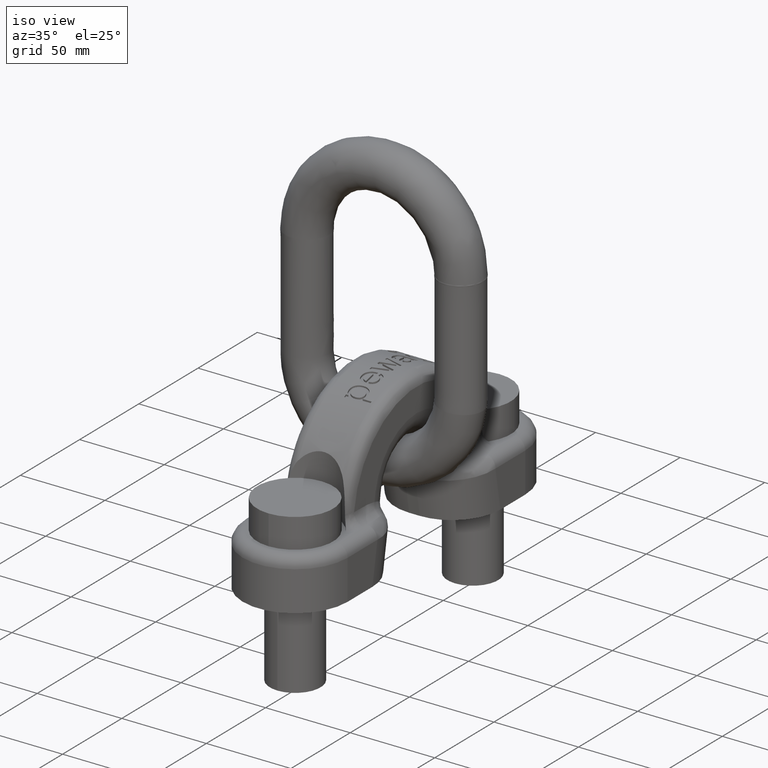
[diagram: clean part render]
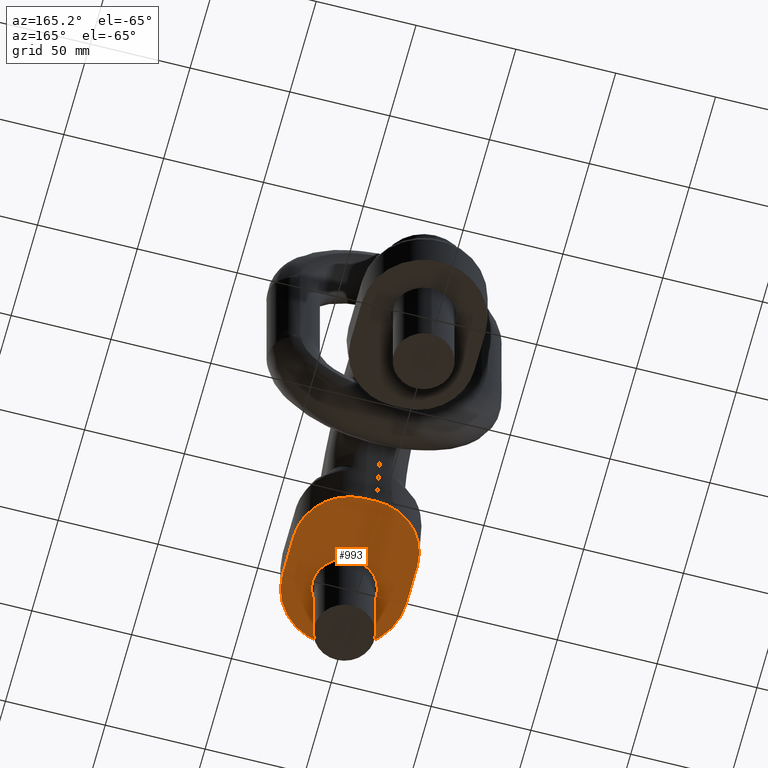
[diagram: tour spotlight — one face highlighted and labeled with its STEP entity id]
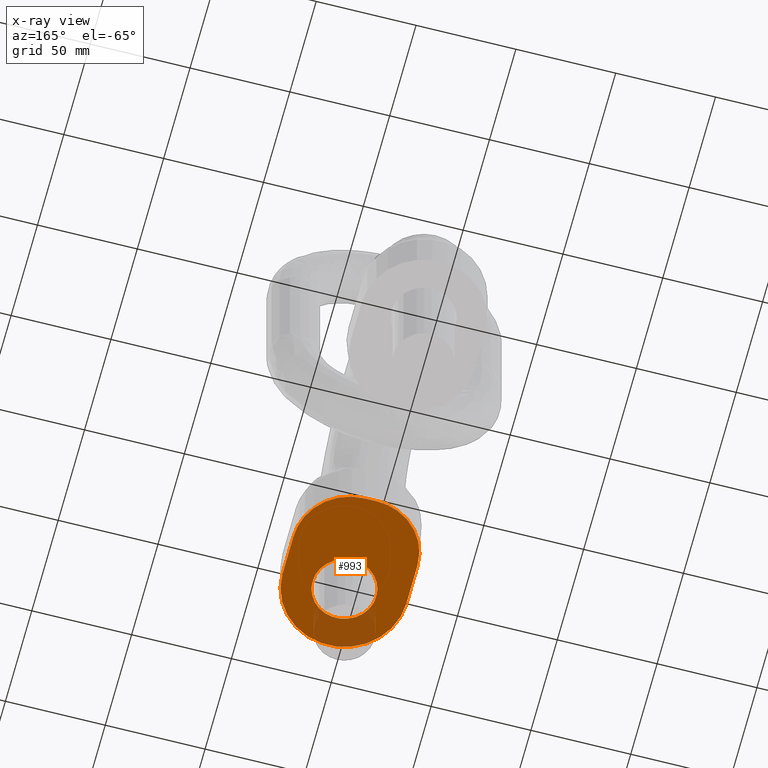
[diagram: x-ray of the same camera — body ghosted, this tour face saturated]
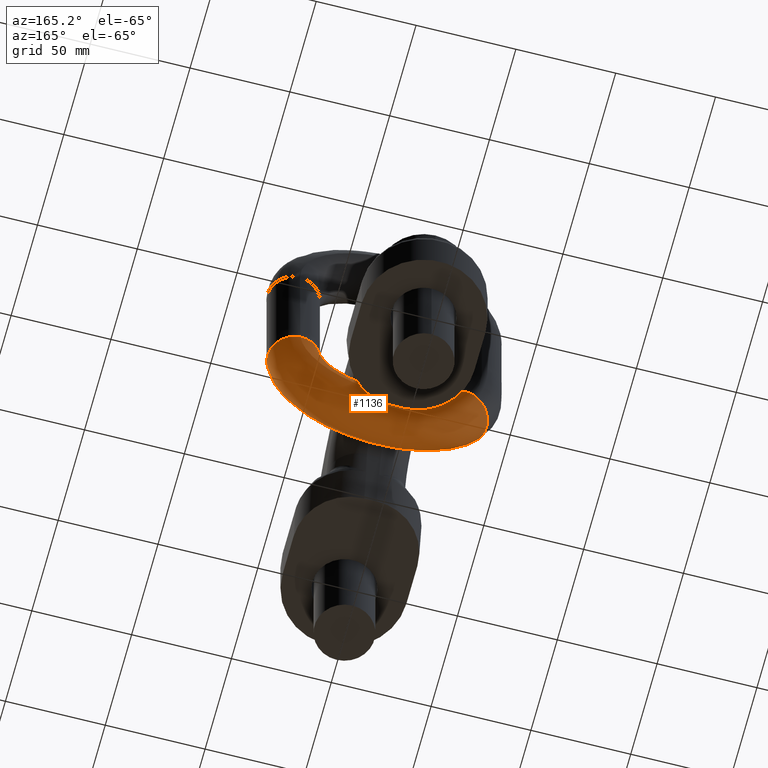
[diagram: tour spotlight — one face highlighted and labeled with its STEP entity id]
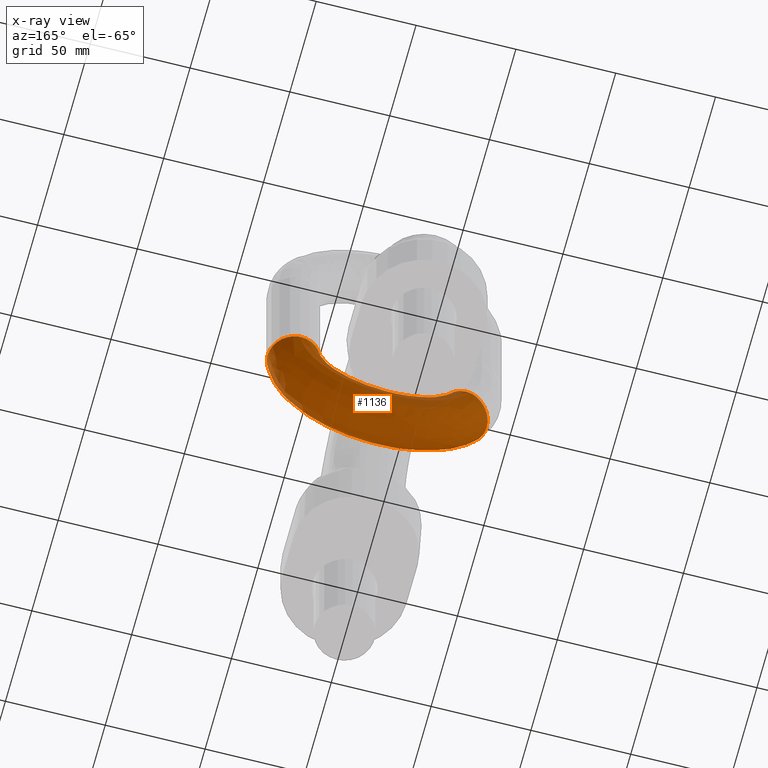
[diagram: x-ray of the same camera — body ghosted, this tour face saturated]
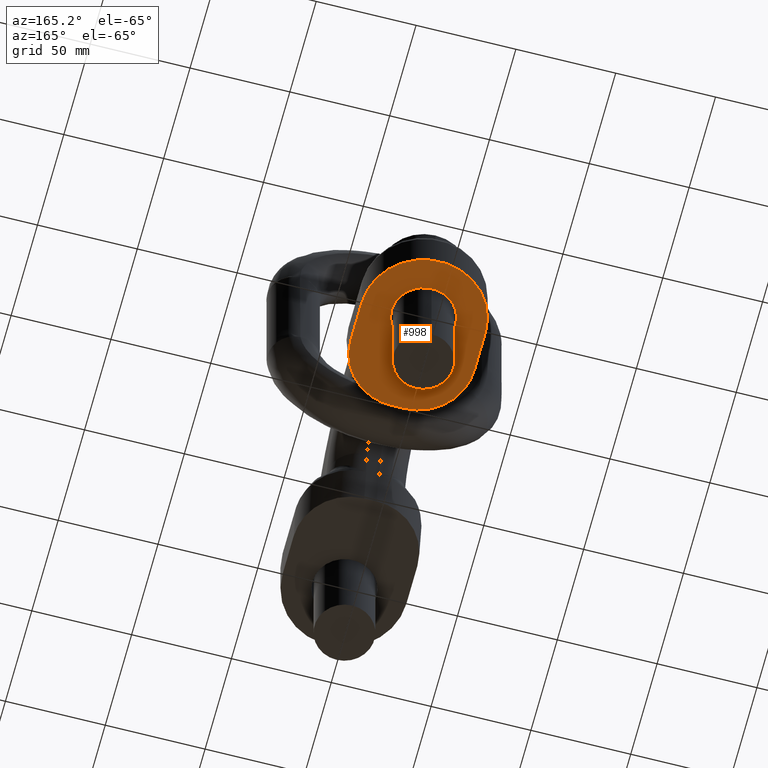
[diagram: tour spotlight — one face highlighted and labeled with its STEP entity id]
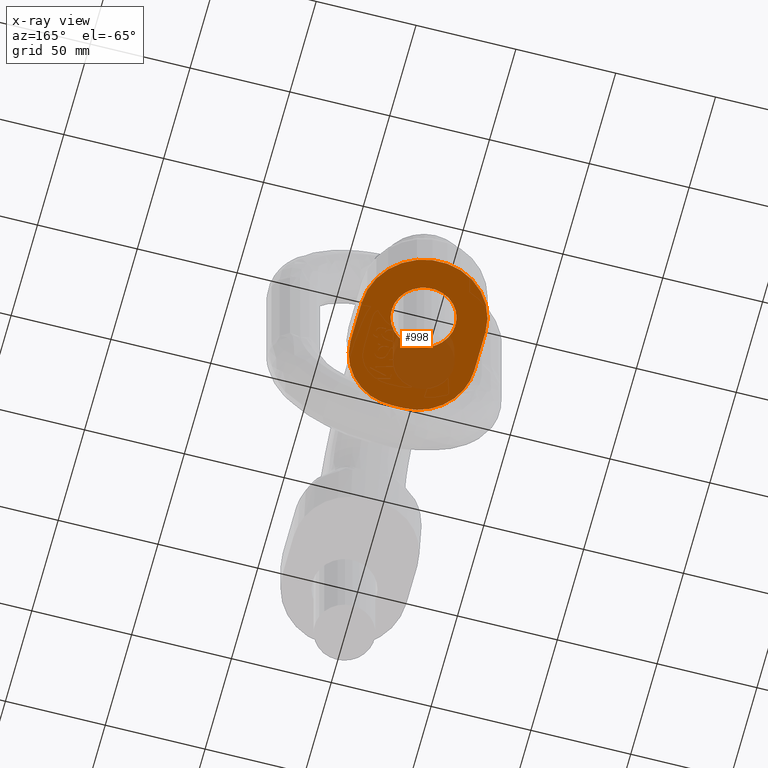
[diagram: x-ray of the same camera — body ghosted, this tour face saturated]
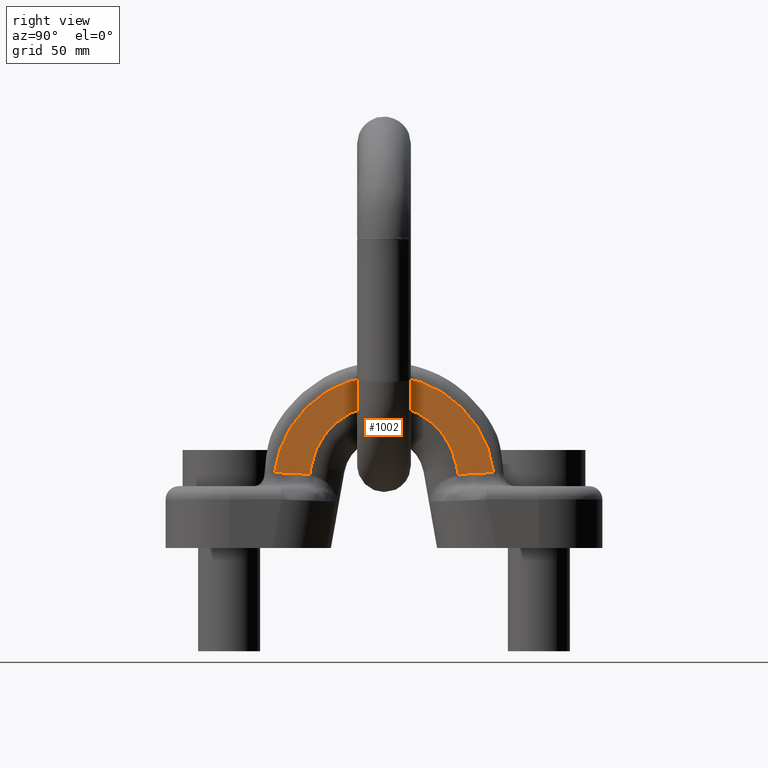
[diagram: tour spotlight — one face highlighted and labeled with its STEP entity id]
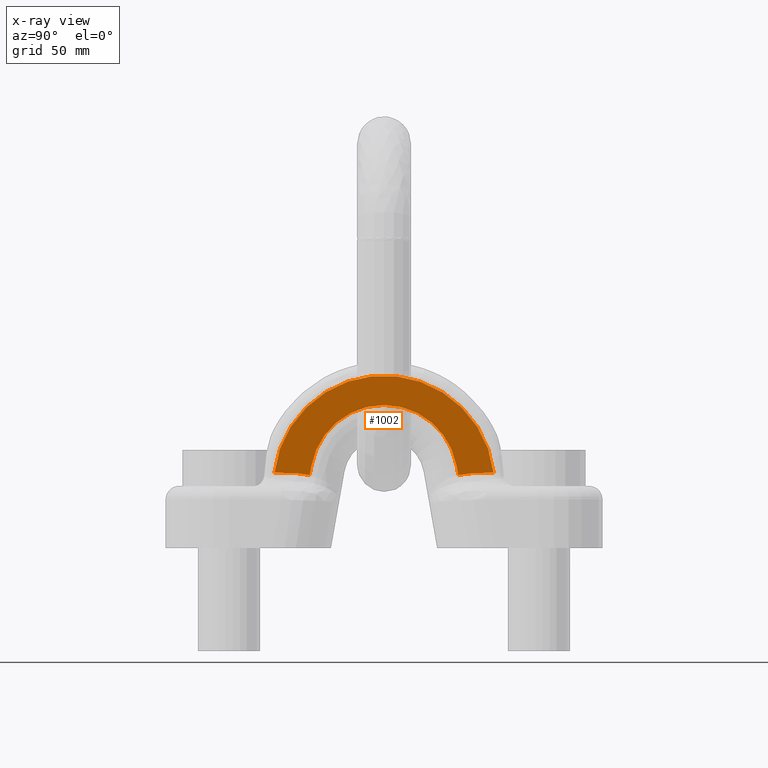
[diagram: x-ray of the same camera — body ghosted, this tour face saturated]
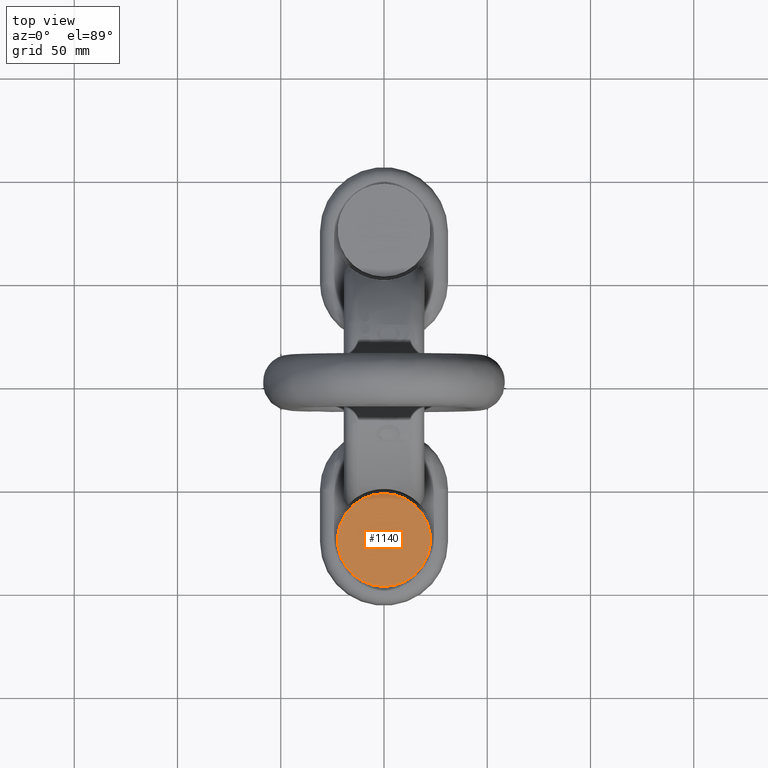
[diagram: tour spotlight — one face highlighted and labeled with its STEP entity id]
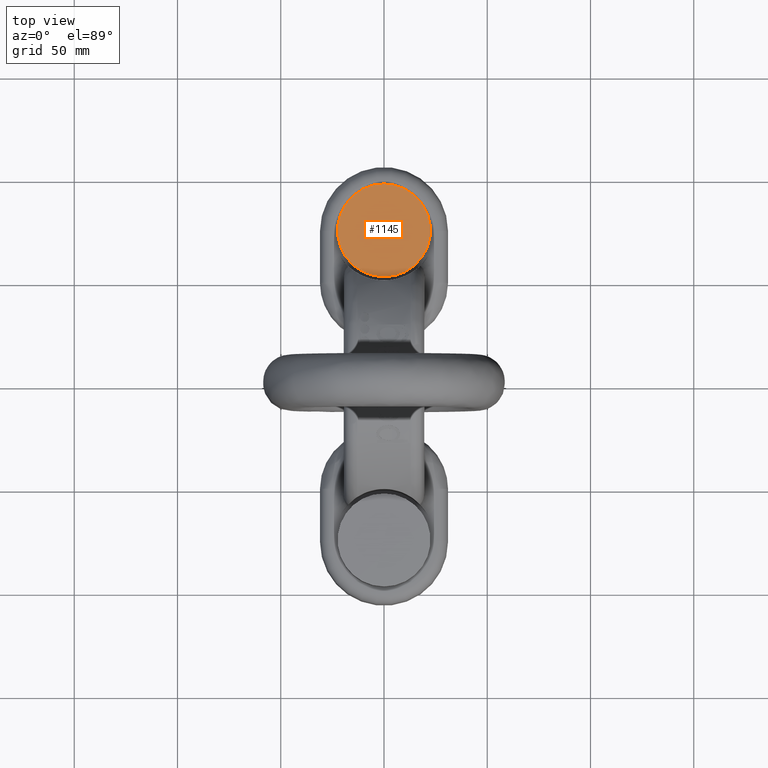
[diagram: tour spotlight — one face highlighted and labeled with its STEP entity id]
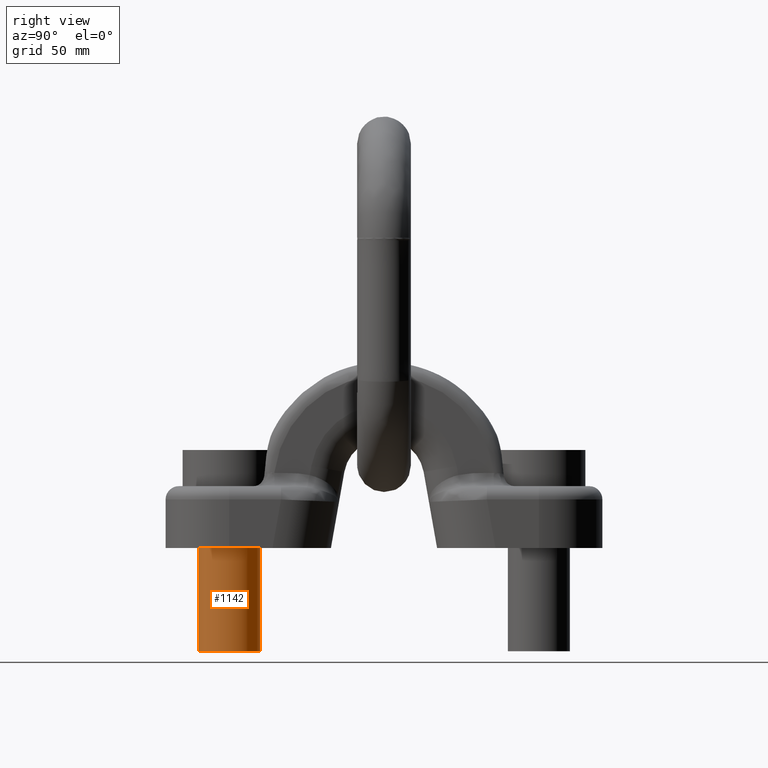
[diagram: tour spotlight — one face highlighted and labeled with its STEP entity id]
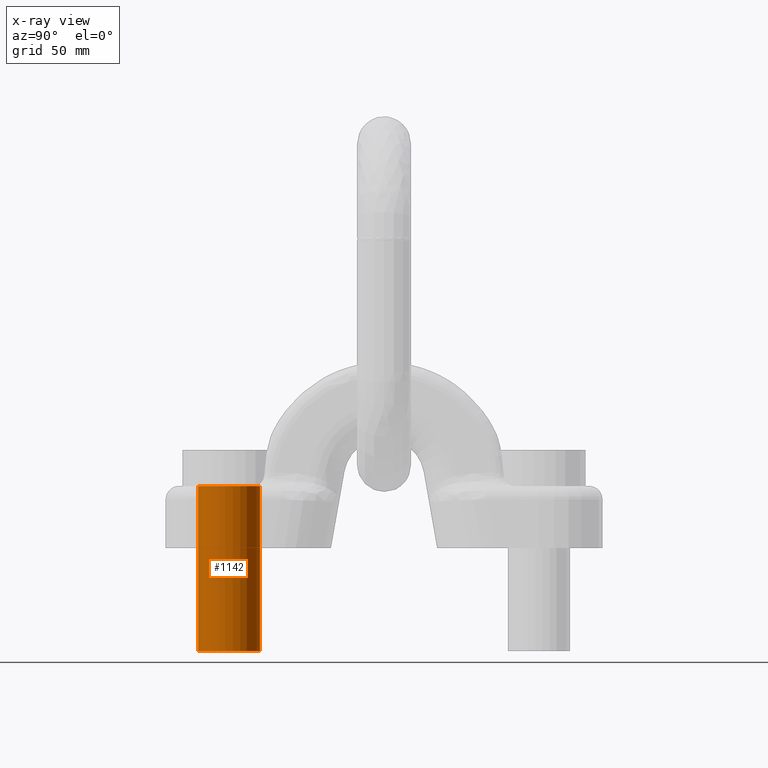
[diagram: x-ray of the same camera — body ghosted, this tour face saturated]
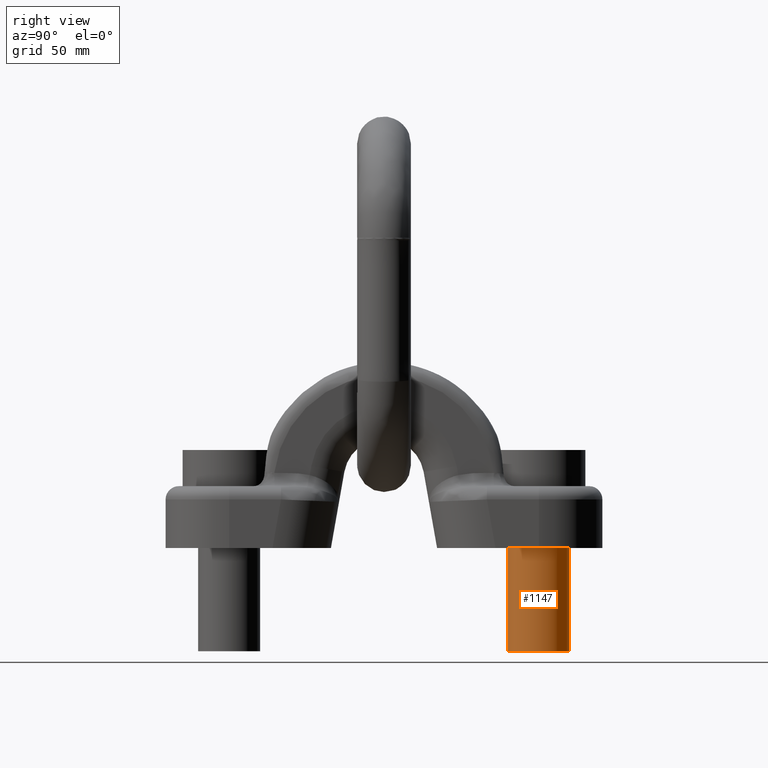
[diagram: tour spotlight — one face highlighted and labeled with its STEP entity id]
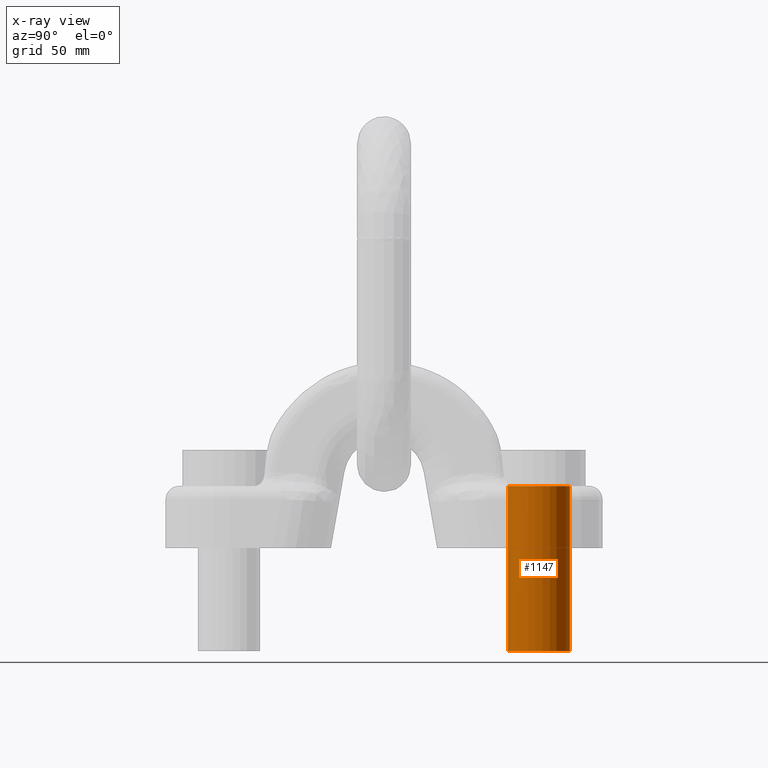
[diagram: x-ray of the same camera — body ghosted, this tour face saturated]
A machine part: a face-by-face anatomy tour. The part has 171 B-rep faces; the first image is the clean iso view, then the 8 largest visible faces are spotlighted one at a time (largest first), each with its STEP entity span.

Face 1 — auxiliary view, entity #993. An x-ray twin of the same camera follows (body ghosted, this face saturated) — the face is partly hidden behind the body. In plain terms, the highlighted planar face has unit normal (0, 0, 1).
Definition (entity closure, byte-faithful):
#747=PLANE('',#3584);
#993=ADVANCED_FACE('',(#1493,#1494),#747,.F.);
#1198=LINE('',#5129,#1324);
#1206=LINE('',#5161,#1332);
#1215=LINE('',#5197,#1341);
#1324=VECTOR('',#3809,1.);
#1332=VECTOR('',#3841,1.);
#1341=VECTOR('',#3878,1.);
#1493=FACE_BOUND('',#1562,.T.);
#1494=FACE_BOUND('',#1563,.T.);
#1562=EDGE_LOOP('',(#2180));
#1563=EDGE_LOOP('',(#2181,#2182,#2183,#2184,#2185,#2186));
#1986=CIRCLE('',#3582,16.);
#1987=CIRCLE('',#3583,31.);
#2180=ORIENTED_EDGE('',*,*,#3230,.F.);
#2181=ORIENTED_EDGE('',*,*,#3197,.F.);
#2182=ORIENTED_EDGE('',*,*,#3209,.T.);
#2183=ORIENTED_EDGE('',*,*,#3231,.F.);
#2184=ORIENTED_EDGE('',*,*,#3228,.T.);
#2185=ORIENTED_EDGE('',*,*,#3213,.F.);
#2186=ORIENTED_EDGE('',*,*,#3232,.F.);
#2929=VERTEX_POINT('',#5124);
#2931=VERTEX_POINT('',#5128);
#2939=VERTEX_POINT('',#5151);
#2940=VERTEX_POINT('',#5155);
#2943=VERTEX_POINT('',#5160);
#2955=VERTEX_POINT('',#5192);
#2956=VERTEX_POINT('',#5196);
#3197=EDGE_CURVE('',#2931,#2929,#1198,.T.);
#3209=EDGE_CURVE('',#2931,#2939,#3513,.T.);
#3213=EDGE_CURVE('',#2943,#2940,#1206,.T.);
#3228=EDGE_CURVE('',#2955,#2940,#3517,.T.);
#3230=EDGE_CURVE('',#2956,#2956,#1986,.T.);
#3231=EDGE_CURVE('',#2955,#2939,#1215,.T.);
#3232=EDGE_CURVE('',#2929,#2943,#1987,.T.);
#3513=ELLIPSE('',#3567,28.3304024716123,27.9);
#3517=ELLIPSE('',#3580,28.3304024716123,27.9);
#3567=AXIS2_PLACEMENT_3D('',#5152,#3834,#3835);
#3580=AXIS2_PLACEMENT_3D('',#5191,#3871,#3872);
#3582=AXIS2_PLACEMENT_3D('',#5195,#3876,#3877);
#3583=AXIS2_PLACEMENT_3D('',#5198,#3879,#3880);
#3584=AXIS2_PLACEMENT_3D('',#5199,#3881,#3882);
#3809=DIRECTION('',(0.,-1.,0.));
#3834=DIRECTION('',(0.,0.,-1.));
#3835=DIRECTION('',(0.,-1.,0.));
#3841=DIRECTION('',(0.,1.,0.));
#3871=DIRECTION('',(0.,0.,-1.));
#3872=DIRECTION('',(0.,1.,0.));
#3876=DIRECTION('',(0.,0.,-1.));
#3877=DIRECTION('',(1.,0.,0.));
#3878=DIRECTION('',(-1.,0.,0.));
#3879=DIRECTION('',(0.,0.,1.));
#3880=DIRECTION('',(6.12323399573677E-17,1.,0.));
#3881=DIRECTION('',(0.,0.,1.));
#3882=DIRECTION('',(1.,0.,0.));
#5124=CARTESIAN_POINT('',(-31.,-75.,0.));
#5128=CARTESIAN_POINT('',(-31.,-54.0381752571179,0.));
#5129=CARTESIAN_POINT('',(-31.,75.,0.));
#5151=CARTESIAN_POINT('',(-3.10000000000001,-25.7077727855056,0.));
#5152=CARTESIAN_POINT('',(-3.10000000000001,-54.0381752571179,0.));
#5155=CARTESIAN_POINT('',(31.,-54.0381752571179,0.));
#5160=CARTESIAN_POINT('',(31.,-75.,0.));
#5161=CARTESIAN_POINT('',(31.,-75.,0.));
#5191=CARTESIAN_POINT('',(3.1,-54.0381752571179,0.));
#5192=CARTESIAN_POINT('',(3.1,-25.7077727855056,0.));
#5195=CARTESIAN_POINT('',(0.,-75.,0.));
#5196=CARTESIAN_POINT('',(16.,-75.,0.));
#5197=CARTESIAN_POINT('',(64.3819880014511,-25.7077727855056,0.));
#5198=CARTESIAN_POINT('',(0.,-75.,0.));
#5199=CARTESIAN_POINT('',(62.,-106.,0.));

Face 2 — auxiliary view, entity #1136. An x-ray twin of the same camera follows (body ghosted, this face saturated) — the face is partly hidden behind the body. In plain terms, the highlighted face is a freeform B-spline surface patch.
Definition (entity closure, byte-faithful):
#31=(
BOUNDED_CURVE()
B_SPLINE_CURVE(4,(#7061,#7062,#7063,#7064,#7065,#7066,#7067,#7068,#7069,
#7070,#7071,#7072,#7073,#7074),.UNSPECIFIED.,.T.,.F.)
B_SPLINE_CURVE_WITH_KNOTS((2,3,3,3,3,3,2),(-0.25,0.,0.25,0.5,0.75,1.,1.25),
 .UNSPECIFIED.)
CURVE()
GEOMETRIC_REPRESENTATION_ITEM()
RATIONAL_B_SPLINE_CURVE((1.0166117137858,1.0166117137858,0.958470715535492,
1.0166117137858,1.0166117137858,0.958470715535492,1.0166117137858,1.0166117137858,
0.958470715535492,1.0166117137858,1.0166117137858,0.958470715535492,1.0166117137858,
1.0166117137858))
REPRESENTATION_ITEM('')
);
#33=(
BOUNDED_CURVE()
B_SPLINE_CURVE(4,(#7259,#7260,#7261,#7262,#7263,#7264,#7265,#7266,#7267,
#7268,#7269,#7270,#7271,#7272),.UNSPECIFIED.,.T.,.F.)
B_SPLINE_CURVE_WITH_KNOTS((2,3,3,3,3,3,2),(-0.25,0.,0.25,0.5,0.75,1.,1.25),
 .UNSPECIFIED.)
CURVE()
GEOMETRIC_REPRESENTATION_ITEM()
RATIONAL_B_SPLINE_CURVE((1.0166117137858,1.0166117137858,0.958470715535491,
1.0166117137858,1.0166117137858,0.958470715535491,1.0166117137858,1.0166117137858,
0.958470715535491,1.0166117137858,1.0166117137858,0.958470715535491,1.0166117137858,
1.0166117137858))
REPRESENTATION_ITEM('')
);
#820=(
BOUNDED_SURFACE()
B_SPLINE_SURFACE(4,3,((#7274,#7275,#7276,#7277,#7278,#7279,#7280,#7281,
#7282,#7283),(#7284,#7285,#7286,#7287,#7288,#7289,#7290,#7291,#7292,#7293),
(#7294,#7295,#7296,#7297,#7298,#7299,#7300,#7301,#7302,#7303),(#7304,#7305,
#7306,#7307,#7308,#7309,#7310,#7311,#7312,#7313),(#7314,#7315,#7316,#7317,
#7318,#7319,#7320,#7321,#7322,#7323),(#7324,#7325,#7326,#7327,#7328,#7329,
#7330,#7331,#7332,#7333),(#7334,#7335,#7336,#7337,#7338,#7339,#7340,#7341,
#7342,#7343),(#7344,#7345,#7346,#7347,#7348,#7349,#7350,#7351,#7352,#7353),
(#7354,#7355,#7356,#7357,#7358,#7359,#7360,#7361,#7362,#7363),(#7364,#7365,
#7366,#7367,#7368,#7369,#7370,#7371,#7372,#7373),(#7374,#7375,#7376,#7377,
#7378,#7379,#7380,#7381,#7382,#7383),(#7384,#7385,#7386,#7387,#7388,#7389,
#7390,#7391,#7392,#7393),(#7394,#7395,#7396,#7397,#7398,#7399,#7400,#7401,
#7402,#7403),(#7404,#7405,#7406,#7407,#7408,#7409,#7410,#7411,#7412,#7413)),
 .UNSPECIFIED.,.T.,.F.,.F.)
B_SPLINE_SURFACE_WITH_KNOTS((2,3,3,3,3,3,2),(4,1,1,1,1,1,1,4),(-0.25,0.,
0.25,0.5,0.75,1.,1.25),(0.,0.0502436644670587,0.168351037822798,0.436689591047077,
0.62641787489109,0.81573912798028,0.929266448825841,1.),.UNSPECIFIED.)
GEOMETRIC_REPRESENTATION_ITEM()
RATIONAL_B_SPLINE_SURFACE(((1.0166117137858,1.0166117137858,1.0166117137858,
1.01661171378581,1.0166117137858,1.0166117137858,1.0166117137858,1.0166117137858,
1.0166117137858,1.0166117137858),(1.0166117137858,1.0166117137858,1.0166117137858,
1.01661171378581,1.0166117137858,1.0166117137858,1.0166117137858,1.0166117137858,
1.0166117137858,1.0166117137858),(0.958470715535491,0.958470715535491,0.95847071553549,
0.958470715535496,0.958470715535489,0.958470715535495,0.95847071553549,
0.958470715535493,0.958470715535492,0.958470715535492),(1.0166117137858,
1.0166117137858,1.0166117137858,1.01661171378581,1.0166117137858,1.0166117137858,
1.0166117137858,1.0166117137858,1.0166117137858,1.0166117137858),(1.0166117137858,
1.0166117137858,1.0166117137858,1.01661171378581,1.0166117137858,1.0166117137858,
1.0166117137858,1.0166117137858,1.0166117137858,1.0166117137858),(0.958470715535491,
0.958470715535491,0.95847071553549,0.958470715535496,0.958470715535489,
0.958470715535495,0.95847071553549,0.958470715535493,0.958470715535492,
0.958470715535492),(1.0166117137858,1.0166117137858,1.0166117137858,1.01661171378581,
1.0166117137858,1.0166117137858,1.0166117137858,1.0166117137858,1.0166117137858,
1.0166117137858),(1.0166117137858,1.0166117137858,1.0166117137858,1.01661171378581,
1.0166117137858,1.0166117137858,1.0166117137858,1.0166117137858,1.0166117137858,
1.0166117137858),(0.958470715535491,0.958470715535491,0.95847071553549,
0.958470715535496,0.958470715535489,0.958470715535495,0.95847071553549,
0.958470715535493,0.958470715535492,0.958470715535492),(1.0166117137858,
1.0166117137858,1.0166117137858,1.01661171378581,1.0166117137858,1.0166117137858,
1.0166117137858,1.0166117137858,1.0166117137858,1.0166117137858),(1.0166117137858,
1.0166117137858,1.0166117137858,1.01661171378581,1.0166117137858,1.0166117137858,
1.0166117137858,1.0166117137858,1.0166117137858,1.0166117137858),(0.958470715535491,
0.958470715535491,0.95847071553549,0.958470715535496,0.958470715535489,
0.958470715535495,0.95847071553549,0.958470715535493,0.958470715535492,
0.958470715535492),(1.0166117137858,1.0166117137858,1.0166117137858,1.01661171378581,
1.0166117137858,1.0166117137858,1.0166117137858,1.0166117137858,1.0166117137858,
1.0166117137858),(1.0166117137858,1.0166117137858,1.0166117137858,1.01661171378581,
1.0166117137858,1.0166117137858,1.0166117137858,1.0166117137858,1.0166117137858,
1.0166117137858)))
REPRESENTATION_ITEM('')
SURFACE()
);
#1136=ADVANCED_FACE('',(#1521,#1522),#820,.F.);
#1521=FACE_BOUND('',#1719,.T.);
#1522=FACE_BOUND('',#1720,.T.);
#1719=EDGE_LOOP('',(#2813));
#1720=EDGE_LOOP('',(#2814));
#2813=ORIENTED_EDGE('',*,*,#3487,.T.);
#2814=ORIENTED_EDGE('',*,*,#3485,.F.);
#3085=VERTEX_POINT('',#7075);
#3087=VERTEX_POINT('',#7273);
#3485=EDGE_CURVE('',#3085,#3085,#31,.T.);
#3487=EDGE_CURVE('',#3087,#3087,#33,.T.);
#7061=CARTESIAN_POINT('',(49.9123182562666,13.,81.2413681524997));
#7062=CARTESIAN_POINT('',(40.7536703470668,13.,82.004129540529));
#7063=CARTESIAN_POINT('',(34.6703721927762,10.7019029611437,82.5107659993127));
#7064=CARTESIAN_POINT('',(32.3807102154762,4.59619407771257,82.7014563463199));
#7065=CARTESIAN_POINT('',(32.3807102154762,-4.59619407771254,82.7014563463199));
#7066=CARTESIAN_POINT('',(34.6703721927762,-10.7019029611437,82.5107659993127));
#7067=CARTESIAN_POINT('',(40.7536703470667,-13.,82.004129540529));
#7068=CARTESIAN_POINT('',(49.9123182562666,-13.,81.2413681524997));
#7069=CARTESIAN_POINT('',(55.9956164105572,-10.7019029611437,80.7347316937162));
#7070=CARTESIAN_POINT('',(58.2852783878572,-4.59619407771258,80.5440413467088));
#7071=CARTESIAN_POINT('',(58.2852783878572,4.59619407771254,80.5440413467088));
#7072=CARTESIAN_POINT('',(55.9956164105572,10.7019029611437,80.7347316937162));
#7073=CARTESIAN_POINT('',(49.9123182562666,13.,81.2413681524997));
#7074=CARTESIAN_POINT('',(40.7536703470668,13.,82.004129540529));
#7075=CARTESIAN_POINT('',(45.3329943016667,13.,81.6227488465144));
#7259=CARTESIAN_POINT('',(-43.9947758246071,13.,61.529586170425));
#7260=CARTESIAN_POINT('',(-35.9219658310306,13.,65.9287183577048));
#7261=CARTESIAN_POINT('',(-30.5598959468361,10.7019029611437,68.850681619168));
#7262=CARTESIAN_POINT('',(-28.541693448442,4.59619407771255,69.950464665988));
#7263=CARTESIAN_POINT('',(-28.541693448442,-4.59619407771258,69.950464665988));
#7264=CARTESIAN_POINT('',(-30.5598959468361,-10.7019029611437,68.850681619168));
#7265=CARTESIAN_POINT('',(-35.9219658310307,-13.,65.9287183577048));
#7266=CARTESIAN_POINT('',(-43.994775824607,-13.,61.529586170425));
#7267=CARTESIAN_POINT('',(-49.3568457088016,-10.7019029611437,58.6076229089616));
#7268=CARTESIAN_POINT('',(-51.3750482071957,-4.59619407771255,57.5078398621417));
#7269=CARTESIAN_POINT('',(-51.3750482071956,4.59619407771257,57.5078398621417));
#7270=CARTESIAN_POINT('',(-49.3568457088015,10.7019029611437,58.6076229089616));
#7271=CARTESIAN_POINT('',(-43.9947758246071,13.,61.529586170425));
#7272=CARTESIAN_POINT('',(-35.9219658310306,13.,65.9287183577048));
#7273=CARTESIAN_POINT('',(-39.9583708278188,13.,63.7291522640649));
#7274=CARTESIAN_POINT('',(-35.9219658310306,13.,65.9287183577048));
#7275=CARTESIAN_POINT('',(-34.9438827266875,13.,64.135112219865));
#7276=CARTESIAN_POINT('',(-31.3006969340837,13.,58.5440761613418));
#7277=CARTESIAN_POINT('',(-19.4309368098643,13.,47.3901695135258));
#7278=CARTESIAN_POINT('',(0.626896161736772,13.,42.4105794952338));
#7279=CARTESIAN_POINT('',(21.573475393258,13.,49.0505518302912));
#7280=CARTESIAN_POINT('',(33.6882190616165,13.,60.6033650748278));
#7281=CARTESIAN_POINT('',(39.1884151987142,13.,72.4076162257949));
#7282=CARTESIAN_POINT('',(40.5229341912033,13.,79.2566032143505));
#7283=CARTESIAN_POINT('',(40.7536703470668,13.,82.004129540529));
#7284=CARTESIAN_POINT('',(-43.9947758246071,13.,61.529586170425));
#7285=CARTESIAN_POINT('',(-42.7968862905036,13.,59.3329574615496));
#7286=CARTESIAN_POINT('',(-38.3349605989386,13.,52.4862686551908));
#7287=CARTESIAN_POINT('',(-23.7976872711579,13.,38.8267854410283));
#7288=CARTESIAN_POINT('',(0.767779698657029,13.,32.7238858202012));
#7289=CARTESIAN_POINT('',(26.4217225234422,13.,40.8642513352609));
#7290=CARTESIAN_POINT('',(41.2590350015248,13.,54.9970495800598));
#7291=CARTESIAN_POINT('',(47.9953004158735,13.,69.4879202983674));
#7292=CARTESIAN_POINT('',(49.6297283362274,13.,77.8125337984057));
#7293=CARTESIAN_POINT('',(49.9123182562666,13.,81.2413681524997));
#7294=CARTESIAN_POINT('',(-49.3568457088015,10.7019029611437,58.6076229089616));
#7295=CARTESIAN_POINT('',(-48.0129577629545,10.7019029611437,56.1433011424621));
#7296=CARTESIAN_POINT('',(-43.0072139264435,10.7019029611438,48.4625907513597));
#7297=CARTESIAN_POINT('',(-26.6981421510479,10.7019029611437,33.1388696002659));
#7298=CARTESIAN_POINT('',(0.861356454594514,10.7019029611437,26.2898525066906));
#7299=CARTESIAN_POINT('',(29.6419940210469,10.7019029611437,35.4267995208002));
#7300=CARTESIAN_POINT('',(46.2876736270423,10.7019029611437,51.2732587934924));
#7301=CARTESIAN_POINT('',(53.8449530193737,10.7019029611437,67.5486186653645));
#7302=CARTESIAN_POINT('',(55.6785845170923,10.7019029611437,76.853363307327));
#7303=CARTESIAN_POINT('',(55.9956164105572,10.7019029611437,80.7347316937162));
#7304=CARTESIAN_POINT('',(-51.3750482071956,4.59619407771257,57.5078398621417));
#7305=CARTESIAN_POINT('',(-49.9762086539085,4.59619407771258,54.9427624528831));
#7306=CARTESIAN_POINT('',(-44.7657798426572,4.59619407771258,46.9481388748217));
#7307=CARTESIAN_POINT('',(-27.7898297663714,4.59619407771255,30.9980235821416));
#7308=CARTESIAN_POINT('',(0.896577338824627,4.59619407771256,23.8681790879324));
#7309=CARTESIAN_POINT('',(30.8540558035929,4.59619407771255,33.3802243970426));
#7310=CARTESIAN_POINT('',(48.1803776120194,4.59619407771256,49.8716799198004));
#7311=CARTESIAN_POINT('',(56.0466743236635,4.59619407771255,66.8186946835076));
#7312=CARTESIAN_POINT('',(57.9552830533484,4.59619407771255,76.4923459533407));
#7313=CARTESIAN_POINT('',(58.2852783878572,4.59619407771254,80.5440413467088));
#7314=CARTESIAN_POINT('',(-51.3750482071957,-4.59619407771255,57.5078398621417));
#7315=CARTESIAN_POINT('',(-49.9762086539086,-4.59619407771255,54.9427624528831));
#7316=CARTESIAN_POINT('',(-44.7657798426572,-4.59619407771256,46.9481388748217));
#7317=CARTESIAN_POINT('',(-27.7898297663714,-4.59619407771255,30.9980235821416));
#7318=CARTESIAN_POINT('',(0.896577338824618,-4.59619407771256,23.8681790879324));
#7319=CARTESIAN_POINT('',(30.854055803593,-4.59619407771256,33.3802243970426));
#7320=CARTESIAN_POINT('',(48.1803776120194,-4.59619407771256,49.8716799198004));
#7321=CARTESIAN_POINT('',(56.0466743236635,-4.59619407771257,66.8186946835076));
#7322=CARTESIAN_POINT('',(57.9552830533483,-4.59619407771257,76.4923459533407));
#7323=CARTESIAN_POINT('',(58.2852783878572,-4.59619407771258,80.5440413467088));
#7324=CARTESIAN_POINT('',(-49.3568457088016,-10.7019029611437,58.6076229089616));
#7325=CARTESIAN_POINT('',(-48.0129577629546,-10.7019029611437,56.143301142462));
#7326=CARTESIAN_POINT('',(-43.0072139264435,-10.7019029611437,48.4625907513597));
#7327=CARTESIAN_POINT('',(-26.6981421510479,-10.7019029611437,33.1388696002658));
#7328=CARTESIAN_POINT('',(0.861356454594529,-10.7019029611437,26.2898525066907));
#7329=CARTESIAN_POINT('',(29.6419940210469,-10.7019029611437,35.4267995208001));
#7330=CARTESIAN_POINT('',(46.2876736270423,-10.7019029611437,51.2732587934925));
#7331=CARTESIAN_POINT('',(53.8449530193738,-10.7019029611437,67.5486186653645));
#7332=CARTESIAN_POINT('',(55.6785845170923,-10.7019029611437,76.853363307327));
#7333=CARTESIAN_POINT('',(55.9956164105572,-10.7019029611437,80.7347316937162));
#7334=CARTESIAN_POINT('',(-43.994775824607,-13.,61.529586170425));
#7335=CARTESIAN_POINT('',(-42.7968862905036,-13.,59.3329574615496));
#7336=CARTESIAN_POINT('',(-38.3349605989386,-13.,52.4862686551908));
#7337=CARTESIAN_POINT('',(-23.7976872711579,-13.,38.8267854410283));
#7338=CARTESIAN_POINT('',(0.767779698657073,-13.,32.7238858202011));
#7339=CARTESIAN_POINT('',(26.4217225234421,-13.,40.8642513352609));
#7340=CARTESIAN_POINT('',(41.2590350015248,-13.,54.9970495800598));
#7341=CARTESIAN_POINT('',(47.9953004158734,-13.,69.4879202983674));
#7342=CARTESIAN_POINT('',(49.6297283362274,-13.,77.8125337984057));
#7343=CARTESIAN_POINT('',(49.9123182562666,-13.,81.2413681524997));
#7344=CARTESIAN_POINT('',(-35.9219658310307,-13.,65.9287183577048));
#7345=CARTESIAN_POINT('',(-34.9438827266875,-13.,64.135112219865));
#7346=CARTESIAN_POINT('',(-31.3006969340837,-13.,58.5440761613418));
#7347=CARTESIAN_POINT('',(-19.4309368098643,-13.,47.3901695135258));
#7348=CARTESIAN_POINT('',(0.626896161736754,-13.,42.4105794952338));
#7349=CARTESIAN_POINT('',(21.573475393258,-13.,49.0505518302912));
#7350=CARTESIAN_POINT('',(33.6882190616164,-13.,60.6033650748278));
#7351=CARTESIAN_POINT('',(39.1884151987143,-13.,72.4076162257949));
#7352=CARTESIAN_POINT('',(40.5229341912033,-13.,79.2566032143505));
#7353=CARTESIAN_POINT('',(40.7536703470667,-13.,82.004129540529));
#7354=CARTESIAN_POINT('',(-30.5598959468361,-10.7019029611437,68.850681619168));
#7355=CARTESIAN_POINT('',(-29.7278112542366,-10.7019029611437,67.3247685389526));
#7356=CARTESIAN_POINT('',(-26.6284436065789,-10.7019029611438,62.5677540651732));
#7357=CARTESIAN_POINT('',(-16.5304819299741,-10.7019029611437,53.0780853542881));
#7358=CARTESIAN_POINT('',(0.533319405799267,-10.7019029611437,48.8446128087443));
#7359=CARTESIAN_POINT('',(18.3532038956532,-10.7019029611437,54.488003644752));
#7360=CARTESIAN_POINT('',(28.659580436099,-10.7019029611438,64.3271558613951));
#7361=CARTESIAN_POINT('',(33.338762595214,-10.7019029611437,74.3469178587979));
#7362=CARTESIAN_POINT('',(34.4740780103385,-10.7019029611437,80.2157737054293));
#7363=CARTESIAN_POINT('',(34.6703721927762,-10.7019029611437,82.5107659993127));
#7364=CARTESIAN_POINT('',(-28.541693448442,-4.59619407771258,69.950464665988));
#7365=CARTESIAN_POINT('',(-27.7645603632825,-4.59619407771258,68.5253072285314));
#7366=CARTESIAN_POINT('',(-24.8698776903651,-4.59619407771259,64.0822059417108));
#7367=CARTESIAN_POINT('',(-15.4387943146508,-4.59619407771254,55.2189313724126));
#7368=CARTESIAN_POINT('',(0.498098521569218,-4.59619407771258,51.2662862275023));
#7369=CARTESIAN_POINT('',(17.1411421131072,-4.59619407771254,56.5345787685097));
#7370=CARTESIAN_POINT('',(26.7668764511219,-4.59619407771257,65.728734735087));
#7371=CARTESIAN_POINT('',(31.1370412909242,-4.59619407771255,75.0768418406549));
#7372=CARTESIAN_POINT('',(32.1973794740824,-4.59619407771254,80.5767910594154));
#7373=CARTESIAN_POINT('',(32.3807102154762,-4.59619407771254,82.7014563463199));
#7374=CARTESIAN_POINT('',(-28.541693448442,4.59619407771255,69.950464665988));
#7375=CARTESIAN_POINT('',(-27.7645603632825,4.59619407771255,68.5253072285314));
#7376=CARTESIAN_POINT('',(-24.8698776903651,4.59619407771256,64.0822059417108));
#7377=CARTESIAN_POINT('',(-15.4387943146508,4.59619407771254,55.2189313724126));
#7378=CARTESIAN_POINT('',(0.498098521569227,4.59619407771256,51.2662862275023));
#7379=CARTESIAN_POINT('',(17.1411421131072,4.59619407771256,56.5345787685097));
#7380=CARTESIAN_POINT('',(26.7668764511219,4.59619407771256,65.728734735087));
#7381=CARTESIAN_POINT('',(31.1370412909242,4.59619407771256,75.0768418406549));
#7382=CARTESIAN_POINT('',(32.1973794740824,4.59619407771257,80.5767910594154));
#7383=CARTESIAN_POINT('',(32.3807102154762,4.59619407771257,82.7014563463199));
#7384=CARTESIAN_POINT('',(-30.5598959468361,10.7019029611437,68.850681619168));
#7385=CARTESIAN_POINT('',(-29.7278112542366,10.7019029611437,67.3247685389526));
#7386=CARTESIAN_POINT('',(-26.6284436065789,10.7019029611437,62.5677540651732));
#7387=CARTESIAN_POINT('',(-16.5304819299741,10.7019029611437,53.0780853542881));
#7388=CARTESIAN_POINT('',(0.533319405799255,10.7019029611437,48.8446128087443));
#7389=CARTESIAN_POINT('',(18.3532038956532,10.7019029611437,54.488003644752));
#7390=CARTESIAN_POINT('',(28.659580436099,10.7019029611437,64.3271558613951));
#7391=CARTESIAN_POINT('',(33.338762595214,10.7019029611437,74.3469178587979));
#7392=CARTESIAN_POINT('',(34.4740780103385,10.7019029611437,80.2157737054293));
#7393=CARTESIAN_POINT('',(34.6703721927762,10.7019029611437,82.5107659993127));
#7394=CARTESIAN_POINT('',(-35.9219658310306,13.,65.9287183577048));
#7395=CARTESIAN_POINT('',(-34.9438827266875,13.,64.135112219865));
#7396=CARTESIAN_POINT('',(-31.3006969340837,13.,58.5440761613418));
#7397=CARTESIAN_POINT('',(-19.4309368098643,13.,47.3901695135258));
#7398=CARTESIAN_POINT('',(0.626896161736772,13.,42.4105794952338));
#7399=CARTESIAN_POINT('',(21.573475393258,13.,49.0505518302912));
#7400=CARTESIAN_POINT('',(33.6882190616165,13.,60.6033650748278));
#7401=CARTESIAN_POINT('',(39.1884151987142,13.,72.4076162257949));
#7402=CARTESIAN_POINT('',(40.5229341912033,13.,79.2566032143505));
#7403=CARTESIAN_POINT('',(40.7536703470668,13.,82.004129540529));
#7404=CARTESIAN_POINT('',(-43.9947758246071,13.,61.529586170425));
#7405=CARTESIAN_POINT('',(-42.7968862905036,13.,59.3329574615496));
#7406=CARTESIAN_POINT('',(-38.3349605989386,13.,52.4862686551908));
#7407=CARTESIAN_POINT('',(-23.7976872711579,13.,38.8267854410283));
#7408=CARTESIAN_POINT('',(0.767779698657029,13.,32.7238858202012));
#7409=CARTESIAN_POINT('',(26.4217225234422,13.,40.8642513352609));
#7410=CARTESIAN_POINT('',(41.2590350015248,13.,54.9970495800598));
#7411=CARTESIAN_POINT('',(47.9953004158735,13.,69.4879202983674));
#7412=CARTESIAN_POINT('',(49.6297283362274,13.,77.8125337984057));
#7413=CARTESIAN_POINT('',(49.9123182562666,13.,81.2413681524997));

Face 3 — auxiliary view, entity #998. An x-ray twin of the same camera follows (body ghosted, this face saturated) — the face is partly hidden behind the body. In plain terms, the highlighted planar face has unit normal (0, 0, 1).
Definition (entity closure, byte-faithful):
#750=PLANE('',#3599);
#998=ADVANCED_FACE('',(#1499,#1500),#750,.F.);
#1194=LINE('',#5120,#1320);
#1210=LINE('',#5170,#1336);
#1220=LINE('',#5237,#1346);
#1320=VECTOR('',#3803,1.);
#1336=VECTOR('',#3847,1.);
#1346=VECTOR('',#3915,1.);
#1499=FACE_BOUND('',#1570,.T.);
#1500=FACE_BOUND('',#1571,.T.);
#1570=EDGE_LOOP('',(#2209));
#1571=EDGE_LOOP('',(#2210,#2211,#2212,#2213,#2214,#2215));
#1995=CIRCLE('',#3594,31.);
#1997=CIRCLE('',#3598,16.);
#2209=ORIENTED_EDGE('',*,*,#3248,.T.);
#2210=ORIENTED_EDGE('',*,*,#3249,.T.);
#2211=ORIENTED_EDGE('',*,*,#3200,.T.);
#2212=ORIENTED_EDGE('',*,*,#3193,.F.);
#2213=ORIENTED_EDGE('',*,*,#3246,.F.);
#2214=ORIENTED_EDGE('',*,*,#3217,.F.);
#2215=ORIENTED_EDGE('',*,*,#3222,.T.);
#2924=VERTEX_POINT('',#5114);
#2927=VERTEX_POINT('',#5119);
#2934=VERTEX_POINT('',#5136);
#2945=VERTEX_POINT('',#5165);
#2947=VERTEX_POINT('',#5169);
#2951=VERTEX_POINT('',#5179);
#2967=VERTEX_POINT('',#5236);
#3193=EDGE_CURVE('',#2927,#2924,#1194,.T.);
#3200=EDGE_CURVE('',#2934,#2924,#3511,.T.);
#3217=EDGE_CURVE('',#2947,#2945,#1210,.T.);
#3222=EDGE_CURVE('',#2947,#2951,#3515,.T.);
#3246=EDGE_CURVE('',#2945,#2927,#1995,.T.);
#3248=EDGE_CURVE('',#2967,#2967,#1997,.T.);
#3249=EDGE_CURVE('',#2951,#2934,#1220,.T.);
#3511=ELLIPSE('',#3559,28.3304024716123,27.9);
#3515=ELLIPSE('',#3573,28.3304024716123,27.9);
#3559=AXIS2_PLACEMENT_3D('',#5135,#3815,#3816);
#3573=AXIS2_PLACEMENT_3D('',#5180,#3856,#3857);
#3594=AXIS2_PLACEMENT_3D('',#5231,#3905,#3906);
#3598=AXIS2_PLACEMENT_3D('',#5235,#3913,#3914);
#3599=AXIS2_PLACEMENT_3D('',#5238,#3916,#3917);
#3803=DIRECTION('',(0.,-1.,0.));
#3815=DIRECTION('',(0.,0.,-1.));
#3816=DIRECTION('',(0.,-1.,0.));
#3847=DIRECTION('',(0.,1.,0.));
#3856=DIRECTION('',(0.,0.,-1.));
#3857=DIRECTION('',(0.,1.,0.));
#3905=DIRECTION('',(0.,0.,1.));
#3906=DIRECTION('',(6.12323399573677E-17,1.,0.));
#3913=DIRECTION('',(0.,0.,1.));
#3914=DIRECTION('',(1.,0.,0.));
#3915=DIRECTION('',(-1.,0.,0.));
#3916=DIRECTION('',(0.,0.,1.));
#3917=DIRECTION('',(1.,0.,0.));
#5114=CARTESIAN_POINT('',(-31.,54.0381752571179,0.));
#5119=CARTESIAN_POINT('',(-31.,75.,0.));
#5120=CARTESIAN_POINT('',(-31.,75.,0.));
#5135=CARTESIAN_POINT('',(-3.10000000000001,54.0381752571179,0.));
#5136=CARTESIAN_POINT('',(-3.10000000000001,25.7077727855056,-3.19280617167644E-15));
#5165=CARTESIAN_POINT('',(31.,75.,0.));
#5169=CARTESIAN_POINT('',(31.,54.0381752571179,0.));
#5170=CARTESIAN_POINT('',(31.,-75.,0.));
#5179=CARTESIAN_POINT('',(3.1,25.7077727855056,-3.19280617167644E-15));
#5180=CARTESIAN_POINT('',(3.1,54.0381752571179,0.));
#5231=CARTESIAN_POINT('',(0.,75.,0.));
#5235=CARTESIAN_POINT('',(0.,75.,0.));
#5236=CARTESIAN_POINT('',(16.,75.,0.));
#5237=CARTESIAN_POINT('',(64.3819880014511,25.7077727855056,-3.19280617167644E-15));
#5238=CARTESIAN_POINT('',(62.,-106.,0.));

Face 4 — right view, entity #1002. An x-ray twin of the same camera follows (body ghosted, this face saturated) — the face is partly hidden behind the body. In plain terms, the highlighted planar face has unit normal (1, 0, 0).
Definition (entity closure, byte-faithful):
#753=PLANE('',#3604);
#850=FACE_OUTER_BOUND('',#1575,.T.);
#1002=ADVANCED_FACE('',(#850),#753,.T.);
#1223=LINE('',#5244,#1349);
#1224=LINE('',#5253,#1350);
#1225=LINE('',#5257,#1351);
#1226=LINE('',#5266,#1352);
#1349=VECTOR('',#3926,1.);
#1350=VECTOR('',#3927,1.);
#1351=VECTOR('',#3930,1.);
#1352=VECTOR('',#3931,1.);
#1575=EDGE_LOOP('',(#2228,#2229,#2230,#2231,#2232,#2233,#2234,#2235));
#1798=B_SPLINE_CURVE_WITH_KNOTS('',3,(#5246,#5247,#5248,#5249,#5250,#5251),
 .UNSPECIFIED.,.F.,.F.,(4,2,4),(0.,0.5,1.),.UNSPECIFIED.);
#1799=B_SPLINE_CURVE_WITH_KNOTS('',3,(#5259,#5260,#5261,#5262,#5263,#5264),
 .UNSPECIFIED.,.F.,.F.,(4,2,4),(0.,0.5,1.),.UNSPECIFIED.);
#1975=CIRCLE('',#3552,53.5);
#1998=CIRCLE('',#3603,35.7509657052612);
#2228=ORIENTED_EDGE('',*,*,#3252,.T.);
#2229=ORIENTED_EDGE('',*,*,#3253,.T.);
#2230=ORIENTED_EDGE('',*,*,#3254,.T.);
#2231=ORIENTED_EDGE('',*,*,#3255,.T.);
#2232=ORIENTED_EDGE('',*,*,#3256,.T.);
#2233=ORIENTED_EDGE('',*,*,#3257,.T.);
#2234=ORIENTED_EDGE('',*,*,#3258,.T.);
#2235=ORIENTED_EDGE('',*,*,#3180,.T.);
#2916=VERTEX_POINT('',#5041);
#2917=VERTEX_POINT('',#5043);
#2968=VERTEX_POINT('',#5245);
#2969=VERTEX_POINT('',#5252);
#2970=VERTEX_POINT('',#5254);
#2971=VERTEX_POINT('',#5256);
#2972=VERTEX_POINT('',#5258);
#2973=VERTEX_POINT('',#5265);
#3180=EDGE_CURVE('',#2917,#2916,#1975,.T.);
#3252=EDGE_CURVE('',#2916,#2968,#1223,.T.);
#3253=EDGE_CURVE('',#2968,#2969,#1798,.T.);
#3254=EDGE_CURVE('',#2969,#2970,#1224,.T.);
#3255=EDGE_CURVE('',#2970,#2971,#1998,.T.);
#3256=EDGE_CURVE('',#2971,#2972,#1225,.T.);
#3257=EDGE_CURVE('',#2972,#2973,#1799,.T.);
#3258=EDGE_CURVE('',#2973,#2917,#1226,.T.);
#3552=AXIS2_PLACEMENT_3D('',#5042,#3792,#3793);
#3603=AXIS2_PLACEMENT_3D('',#5255,#3928,#3929);
#3604=AXIS2_PLACEMENT_3D('',#5267,#3932,#3933);
#3792=DIRECTION('',(1.,0.,0.));
#3793=DIRECTION('',(0.,0.,-1.));
#3926=DIRECTION('',(0.,1.,-4.52536558950471E-16));
#3927=DIRECTION('',(0.,0.17364817766693,0.984807753012208));
#3928=DIRECTION('',(-1.,0.,0.));
#3929=DIRECTION('',(0.,0.,-1.));
#3930=DIRECTION('',(0.,0.17364817766693,-0.984807753012208));
#3931=DIRECTION('',(0.,1.,4.52536558950471E-16));
#3932=DIRECTION('',(1.,0.,0.));
#3933=DIRECTION('',(0.,0.,-1.));
#5041=CARTESIAN_POINT('',(19.5,-53.11422813533,36.4131715701449));
#5042=CARTESIAN_POINT('',(19.5,3.46944695195361E-15,30.));
#5043=CARTESIAN_POINT('',(19.5,53.11422813533,36.4131715701449));
#5244=CARTESIAN_POINT('',(19.5,-36.9196264102165,36.4131715701449));
#5245=CARTESIAN_POINT('',(19.5,-49.894491210469,36.4131715701449));
#5246=CARTESIAN_POINT('',(19.5,-49.894491210469,36.4131715701449));
#5247=CARTESIAN_POINT('',(19.5,-47.5611923245202,36.4131715701449));
#5248=CARTESIAN_POINT('',(19.5,-45.2300269216843,36.3848231536884));
#5249=CARTESIAN_POINT('',(19.5,-40.5830552929815,36.1240429875007));
#5250=CARTESIAN_POINT('',(19.5,-38.2674219715674,35.8893137893353));
#5251=CARTESIAN_POINT('',(19.5,-35.9735456883426,35.3654903978541));
#5252=CARTESIAN_POINT('',(19.5,-35.9735456883426,35.365490397854));
#5253=CARTESIAN_POINT('',(19.5,-0.199065393579785,238.252650099815));
#5254=CARTESIAN_POINT('',(19.5,-35.2078282042148,39.7080900445515));
#5255=CARTESIAN_POINT('',(19.5,0.,33.5));
#5256=CARTESIAN_POINT('',(19.5,35.2078282042148,39.7080900445515));
#5257=CARTESIAN_POINT('',(19.5,3.81750814642524,217.731441500275));
#5258=CARTESIAN_POINT('',(19.5,35.9735456883426,35.365490397854));
#5259=CARTESIAN_POINT('',(19.5,35.9735456883426,35.365490397854));
#5260=CARTESIAN_POINT('',(19.5,38.2674219715674,35.8893137893353));
#5261=CARTESIAN_POINT('',(19.5,40.5830552929815,36.1240429875007));
#5262=CARTESIAN_POINT('',(19.5,45.2300269216843,36.3848231536884));
#5263=CARTESIAN_POINT('',(19.5,47.5611923245202,36.4131715701449));
#5264=CARTESIAN_POINT('',(19.5,49.8944912104689,36.4131715701449));
#5265=CARTESIAN_POINT('',(19.5,49.894491210469,36.4131715701449));
#5266=CARTESIAN_POINT('',(19.5,53.5,36.4131715701449));
#5267=CARTESIAN_POINT('',(19.5,60.,227.637930657494));

Face 5 — top view, entity #1140. In plain terms, the highlighted planar face has unit normal (0, 0, -1).
Definition (entity closure, byte-faithful):
#793=PLANE('',#3705);
#974=FACE_OUTER_BOUND('',#1727,.T.);
#1140=ADVANCED_FACE('',(#974),#793,.F.);
#1727=EDGE_LOOP('',(#2821));
#2027=CIRCLE('',#3702,22.5);
#2821=ORIENTED_EDGE('',*,*,#3489,.F.);
#3089=VERTEX_POINT('',#7878);
#3489=EDGE_CURVE('',#3089,#3089,#2027,.T.);
#3702=AXIS2_PLACEMENT_3D('',#7877,#4259,#4260);
#3705=AXIS2_PLACEMENT_3D('',#7882,#4265,#4266);
#4259=DIRECTION('',(0.,0.,-1.));
#4260=DIRECTION('',(1.83697019872103E-16,-1.,0.));
#4265=DIRECTION('',(0.,0.,-1.));
#4266=DIRECTION('',(-1.,0.,0.));
#7877=CARTESIAN_POINT('',(0.,-75.,47.5));
#7878=CARTESIAN_POINT('',(4.13318294712232E-15,-97.5,47.5));
#7882=CARTESIAN_POINT('',(0.,-75.,47.5));

Face 6 — top view, entity #1145. In plain terms, the highlighted planar face has unit normal (0, 0, -1).
Definition (entity closure, byte-faithful):
#796=PLANE('',#3714);
#976=FACE_OUTER_BOUND('',#1735,.T.);
#1145=ADVANCED_FACE('',(#976),#796,.F.);
#1735=EDGE_LOOP('',(#2829));
#2031=CIRCLE('',#3711,22.5);
#2829=ORIENTED_EDGE('',*,*,#3493,.F.);
#3093=VERTEX_POINT('',#7891);
#3493=EDGE_CURVE('',#3093,#3093,#2031,.T.);
#3711=AXIS2_PLACEMENT_3D('',#7890,#4277,#4278);
#3714=AXIS2_PLACEMENT_3D('',#7895,#4283,#4284);
#4277=DIRECTION('',(0.,0.,-1.));
#4278=DIRECTION('',(-6.12323399573677E-17,1.,0.));
#4283=DIRECTION('',(0.,0.,-1.));
#4284=DIRECTION('',(-1.,0.,0.));
#7890=CARTESIAN_POINT('',(0.,75.,47.5));
#7891=CARTESIAN_POINT('',(-1.37772764904077E-15,97.5,47.5));
#7895=CARTESIAN_POINT('',(0.,75.,47.5));

Face 7 — right view, entity #1142. An x-ray twin of the same camera follows (body ghosted, this face saturated) — the face is partly hidden behind the body. In plain terms, the highlighted cylindrical surface (bore or boss wall) has radius 15 mm, axis along (0, 0, 1).
Definition (entity closure, byte-faithful):
#1142=ADVANCED_FACE('',(#1531,#1532),#1184,.T.);
#1184=CYLINDRICAL_SURFACE('',#3709,15.);
#1531=FACE_BOUND('',#1730,.T.);
#1532=FACE_BOUND('',#1731,.T.);
#1730=EDGE_LOOP('',(#2824));
#1731=EDGE_LOOP('',(#2825));
#2029=CIRCLE('',#3706,15.);
#2030=CIRCLE('',#3708,15.);
#2824=ORIENTED_EDGE('',*,*,#3492,.F.);
#2825=ORIENTED_EDGE('',*,*,#3491,.T.);
#3091=VERTEX_POINT('',#7884);
#3092=VERTEX_POINT('',#7887);
#3491=EDGE_CURVE('',#3091,#3091,#2029,.T.);
#3492=EDGE_CURVE('',#3092,#3092,#2030,.T.);
#3706=AXIS2_PLACEMENT_3D('',#7883,#4267,#4268);
#3708=AXIS2_PLACEMENT_3D('',#7886,#4271,#4272);
#3709=AXIS2_PLACEMENT_3D('',#7888,#4273,#4274);
#4267=DIRECTION('',(0.,0.,-1.));
#4268=DIRECTION('',(1.83697019872103E-16,-1.,0.));
#4271=DIRECTION('',(0.,0.,-1.));
#4272=DIRECTION('',(1.83697019872103E-16,-1.,0.));
#4273=DIRECTION('',(0.,0.,1.));
#4274=DIRECTION('',(1.,0.,0.));
#7883=CARTESIAN_POINT('',(0.,-75.,30.));
#7884=CARTESIAN_POINT('',(2.75545529808154E-15,-90.,30.));
#7886=CARTESIAN_POINT('',(0.,-75.,-50.));
#7887=CARTESIAN_POINT('',(2.75545529808154E-15,-90.,-50.));
#7888=CARTESIAN_POINT('',(0.,-75.,-50.));

Face 8 — right view, entity #1147. An x-ray twin of the same camera follows (body ghosted, this face saturated) — the face is partly hidden behind the body. In plain terms, the highlighted cylindrical surface (bore or boss wall) has radius 15 mm, axis along (0, 0, 1).
Definition (entity closure, byte-faithful):
#1147=ADVANCED_FACE('',(#1537,#1538),#1186,.T.);
#1186=CYLINDRICAL_SURFACE('',#3718,15.);
#1537=FACE_BOUND('',#1738,.T.);
#1538=FACE_BOUND('',#1739,.T.);
#1738=EDGE_LOOP('',(#2832));
#1739=EDGE_LOOP('',(#2833));
#2033=CIRCLE('',#3715,15.);
#2034=CIRCLE('',#3717,15.);
#2832=ORIENTED_EDGE('',*,*,#3496,.T.);
#2833=ORIENTED_EDGE('',*,*,#3495,.F.);
#3095=VERTEX_POINT('',#7897);
#3096=VERTEX_POINT('',#7900);
#3495=EDGE_CURVE('',#3095,#3095,#2033,.T.);
#3496=EDGE_CURVE('',#3096,#3096,#2034,.T.);
#3715=AXIS2_PLACEMENT_3D('',#7896,#4285,#4286);
#3717=AXIS2_PLACEMENT_3D('',#7899,#4289,#4290);
#3718=AXIS2_PLACEMENT_3D('',#7901,#4291,#4292);
#4285=DIRECTION('',(0.,0.,1.));
#4286=DIRECTION('',(6.12323399573677E-17,1.,0.));
#4289=DIRECTION('',(0.,0.,1.));
#4290=DIRECTION('',(6.12323399573677E-17,1.,0.));
#4291=DIRECTION('',(0.,0.,1.));
#4292=DIRECTION('',(1.,0.,0.));
#7896=CARTESIAN_POINT('',(0.,75.,30.));
#7897=CARTESIAN_POINT('',(9.18485099360515E-16,90.,30.));
#7899=CARTESIAN_POINT('',(0.,75.,-50.));
#7900=CARTESIAN_POINT('',(9.18485099360515E-16,90.,-50.));
#7901=CARTESIAN_POINT('',(0.,75.,-50.));